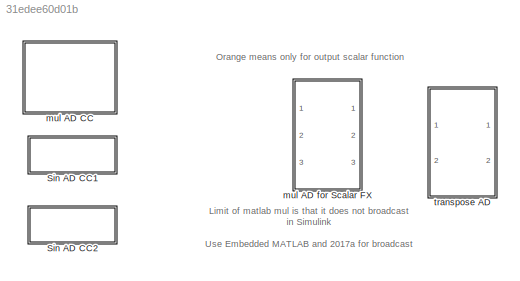
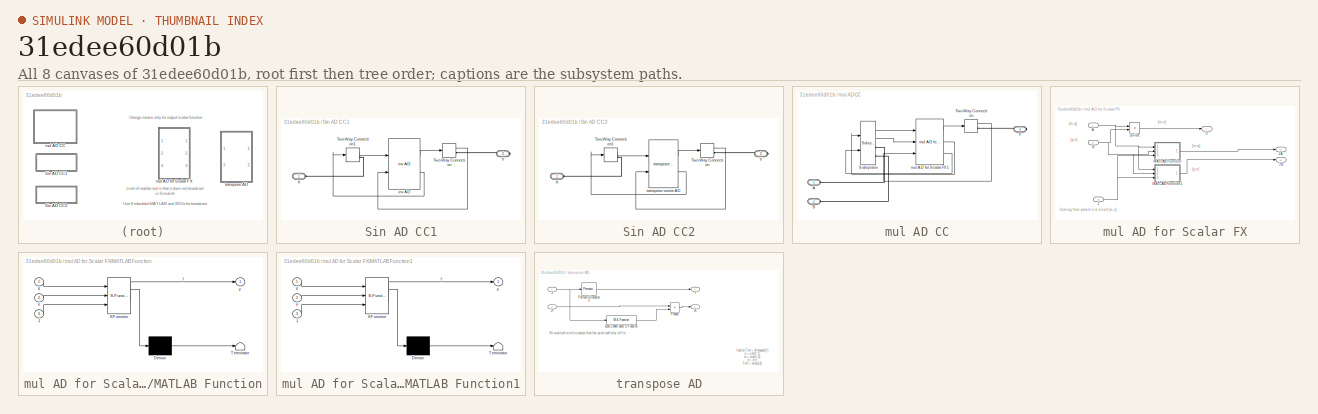
[diagram: thumbnail index - all 8 canvases of the model, root first then tree order]
MODEL slx_31edee60d01b
KIND library
CONFIG AbsTol = auto
CONFIG EnableMultiTasking = off
CONFIG FixedStep = auto
CONFIG MaxStep = auto
CONFIG MinStep = auto
CONFIG RelTol = 1e-3
CONFIG SampleTimeConstraint = Unconstrained
CONFIG Solver = VariableStepAuto
CONFIG SolverName = VariableStepAuto
CONFIG StartTime = 0.0
CONFIG StopTime = 10.0
BLOCK [SubSystem] Sin AD CC1
  Ports = [0, 0, 0, 0, 0, 1, 1]
  RequestExecContextInheritance = off
  Variant = off
BLOCK [TwoWayConnection] Sin AD CC1/Two-Way Connection
  Ports = [1, 1, 0, 0, 0, 0, 1]
BLOCK [TwoWayConnection] Sin AD CC1/Two-Way Connection1
  Ports = [1, 1, 0, 0, 0, 0, 1]
BLOCK [PMIOPort] Sin AD CC1/X
  Port = 1
  Side = Left
BLOCK [PMIOPort] Sin AD CC1/Y
  Port = 2
  Side = Right
BLOCK [Reference] Sin AD CC1/inv AD  REF=autodiff/inv AD  (lib defined in slx_73a817ef6e8b)
  Ports = [2, 2]
  SourceBlock = autodiff/inv AD
  SourceProductName = AutoDiff
  SourceType = SubSystem
BLOCK [SubSystem] Sin AD CC2
  Ports = [0, 0, 0, 0, 0, 1, 1]
  RequestExecContextInheritance = off
  Variant = off
BLOCK [TwoWayConnection] Sin AD CC2/Two-Way Connection
  Ports = [1, 1, 0, 0, 0, 0, 1]
BLOCK [TwoWayConnection] Sin AD CC2/Two-Way Connection1
  Ports = [1, 1, 0, 0, 0, 0, 1]
BLOCK [PMIOPort] Sin AD CC2/X
  Port = 1
  Side = Left
BLOCK [PMIOPort] Sin AD CC2/Y
  Port = 2
  Side = Right
BLOCK [Reference] Sin AD CC2/transpose vector AD  REF=autodiff/transpose vector AD  (lib defined in slx_73a817ef6e8b)
  Ports = [2, 2]
  SourceBlock = autodiff/transpose vector AD
  SourceProductName = AutoDiff
  SourceType = SubSystem
BLOCK [SubSystem] mul AD CC
  Ports = [0, 0, 0, 0, 0, 2, 1]
  RequestExecContextInheritance = off
  Variant = off
BLOCK [PMIOPort] mul AD CC/A
  Port = 1
  Side = Left
BLOCK [PMIOPort] mul AD CC/B
  Port = 2
  Side = Left
BLOCK [Reference] mul AD CC/Subsystem  REF=autodiff/Plus AD CC/Subsystem  (lib defined in slx_73a817ef6e8b)
  Ports = [2, 2, 0, 0, 0, 0, 2]
  SourceBlock = autodiff/Plus AD CC/Subsystem
  SourceProductName = AutoDiff
  SourceType = SubSystem
BLOCK [TwoWayConnection] mul AD CC/Two-Way Connection
  Ports = [1, 1, 0, 0, 0, 0, 1]
BLOCK [PMIOPort] mul AD CC/Y
  Port = 3
  Side = Right
BLOCK [Reference] mul AD CC/mul AD for Scalar FX1  REF=autodiff/mul AD for Scalar FX  (lib defined in slx_73a817ef6e8b)
  Ports = [3, 3]
  SourceBlock = autodiff/mul AD for Scalar FX
  SourceProductName = AutoDiff
  SourceType = SubSystem
BLOCK [SubSystem] mul AD for Scalar FX
  Ports = [3, 3]
  RequestExecContextInheritance = off
  Variant = off
BLOCK [Inport] mul AD for Scalar FX/A
  IconDisplay = Port number
BLOCK [Inport] mul AD for Scalar FX/B
  IconDisplay = Port number
  Port = 2
BLOCK [Product] mul AD for Scalar FX/Divide
  InputSameDT = off
  Inputs = **
  Multiplication = Matrix(*)
  OutDataTypeStr = Inherit: Inherit via internal rule
  Ports = [2, 1]
  RndMeth = Floor
  SaturateOnIntegerOverflow = off
BLOCK [Inport] mul AD for Scalar FX/J
  IconDisplay = Port number
  Port = 3
BLOCK [Outport] mul AD for Scalar FX/JA
  IconDisplay = Port number
  Port = 2
BLOCK [Outport] mul AD for Scalar FX/JB
  IconDisplay = Port number
  Port = 3
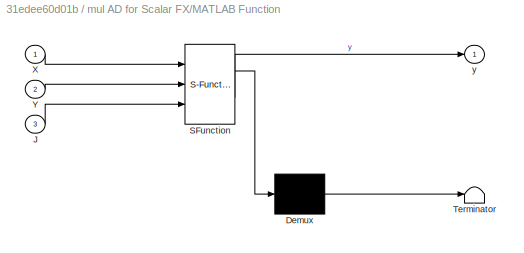
BLOCK [SubSystem] mul AD for Scalar FX/MATLAB Function
  ErrorFcn = Stateflow.Translate.translate
  PermitHierarchicalResolution = ExplicitOnly
  Ports = [3, 1]
  RequestExecContextInheritance = off
  SFBlockType = MATLAB Function
  TreatAsAtomicUnit = on
  Variant = off
BLOCK [Demux] mul AD for Scalar FX/MATLAB Function/ Demux 
  Outputs = 1
  Ports = [1, 1]
BLOCK [S-Function] mul AD for Scalar FX/MATLAB Function/ SFunction 
  EnableBusSupport = off
  FunctionName = sf_sfun
  PortCounts = [3 2]
  Ports = [3, 2]
  SFcnIsStateOwnerBlock = off
  SFunctionDeploymentMode = off
  Tag = Stateflow S-Function ad_mtx_scalar 2
BLOCK [Terminator] mul AD for Scalar FX/MATLAB Function/ Terminator 
BLOCK [Inport] mul AD for Scalar FX/MATLAB Function/J
  IconDisplay = Port number
  Port = 3
BLOCK [Inport] mul AD for Scalar FX/MATLAB Function/X
  IconDisplay = Port number
BLOCK [Inport] mul AD for Scalar FX/MATLAB Function/Y
  IconDisplay = Port number
  Port = 2
BLOCK [Outport] mul AD for Scalar FX/MATLAB Function/y
  IconDisplay = Port number
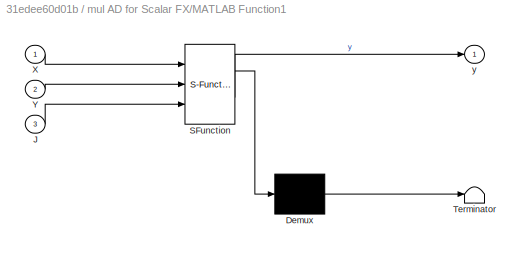
BLOCK [SubSystem] mul AD for Scalar FX/MATLAB Function1
  ErrorFcn = Stateflow.Translate.translate
  PermitHierarchicalResolution = ExplicitOnly
  Ports = [3, 1]
  RequestExecContextInheritance = off
  SFBlockType = MATLAB Function
  TreatAsAtomicUnit = on
  Variant = off
BLOCK [Demux] mul AD for Scalar FX/MATLAB Function1/ Demux 
  Outputs = 1
  Ports = [1, 1]
BLOCK [S-Function] mul AD for Scalar FX/MATLAB Function1/ SFunction 
  EnableBusSupport = off
  FunctionName = sf_sfun
  PortCounts = [3 2]
  Ports = [3, 2]
  SFcnIsStateOwnerBlock = off
  SFunctionDeploymentMode = off
  Tag = Stateflow S-Function ad_mtx_scalar 1
BLOCK [Terminator] mul AD for Scalar FX/MATLAB Function1/ Terminator 
BLOCK [Inport] mul AD for Scalar FX/MATLAB Function1/J
  IconDisplay = Port number
  Port = 3
BLOCK [Inport] mul AD for Scalar FX/MATLAB Function1/X
  IconDisplay = Port number
BLOCK [Inport] mul AD for Scalar FX/MATLAB Function1/Y
  IconDisplay = Port number
  Port = 2
BLOCK [Outport] mul AD for Scalar FX/MATLAB Function1/y
  IconDisplay = Port number
BLOCK [Outport] mul AD for Scalar FX/O
  IconDisplay = Port number
BLOCK [SubSystem] transpose AD
  Ports = [2, 2]
  RequestExecContextInheritance = off
  Variant = off
BLOCK [Outport] transpose AD/JX
  IconDisplay = Port number
  Port = 2
BLOCK [Inport] transpose AD/JY
  IconDisplay = Port number
  Port = 2
BLOCK [M-S-Function] transpose AD/Level-2 MATLAB S-Function
  FunctionName = dtranspose_sfun
  Ports = [1, 1]
BLOCK [PermuteDimensions] transpose AD/Permute Dimensions
BLOCK [Product] transpose AD/Product
  InputSameDT = off
  OutDataTypeStr = Inherit: Inherit via internal rule
  Ports = [2, 1]
  RndMeth = Floor
  SaturateOnIntegerOverflow = off
BLOCK [Inport] transpose AD/X
  IconDisplay = Port number
BLOCK [Outport] transpose AD/Y
  IconDisplay = Port number
ANNOTATION (root): Limit of matlab mul is that it does not broadcast in Simulink Use Embedded MATLAB and 2017a for broadcast
ANNOTATION (root): Orange means only for output scalar function
ANNOTATION mul AD for Scalar FX: Coming from parent it is sized [m,n]
ANNOTATION mul AD for Scalar FX: [m,n]
ANNOTATION mul AD for Scalar FX: [m,q]
ANNOTATION mul AD for Scalar FX: [q,n]
ANNOTATION transpose AD: function Tmn = dtranspose(V) n = size(V,1); m = size(V,2); d = m*n; Tmn = zeros(d,d); i = 1:d; rI = 1+m.*(i-1)-(m*n-1).*floor((i-1)./n); I1s = sub2ind([d d],rI,1:d); Tmn(I1s) = 1; Tmn = Tmn'; end
ANNOTATION transpose AD: We would suffice with a constant block that can be modified at InitFcn
LINE Sin AD CC1/Two-Way Connection1:1 -> Sin AD CC1/inv AD:1
LINE Sin AD CC1/Two-Way Connection:1 -> Sin AD CC1/inv AD:2
LINE Sin AD CC1/inv AD:1 -> Sin AD CC1/Two-Way Connection:1
LINE Sin AD CC1/inv AD:2 -> Sin AD CC1/Two-Way Connection1:1
LINE Sin AD CC2/Two-Way Connection1:1 -> Sin AD CC2/transpose vector AD:1
LINE Sin AD CC2/Two-Way Connection:1 -> Sin AD CC2/transpose vector AD:2
LINE Sin AD CC2/transpose vector AD:1 -> Sin AD CC2/Two-Way Connection:1
LINE Sin AD CC2/transpose vector AD:2 -> Sin AD CC2/Two-Way Connection1:1
LINE mul AD CC/Subsystem:1 -> mul AD CC/mul AD for Scalar FX1:1
LINE mul AD CC/Subsystem:2 -> mul AD CC/mul AD for Scalar FX1:2
LINE mul AD CC/Two-Way Connection:1 -> mul AD CC/mul AD for Scalar FX1:3
LINE mul AD CC/mul AD for Scalar FX1:1 -> mul AD CC/Two-Way Connection:1
LINE mul AD CC/mul AD for Scalar FX1:2 -> mul AD CC/Subsystem:1
LINE mul AD CC/mul AD for Scalar FX1:3 -> mul AD CC/Subsystem:2
NET mul AD for Scalar FX/A:1 -> mul AD for Scalar FX/Divide:1, mul AD for Scalar FX/MATLAB Function1:1, mul AD for Scalar FX/MATLAB Function:1
NET mul AD for Scalar FX/B:1 -> mul AD for Scalar FX/Divide:2, mul AD for Scalar FX/MATLAB Function1:2, mul AD for Scalar FX/MATLAB Function:2
LINE mul AD for Scalar FX/Divide:1 -> mul AD for Scalar FX/O:1
NET mul AD for Scalar FX/J:1 -> mul AD for Scalar FX/MATLAB Function1:3, mul AD for Scalar FX/MATLAB Function:3
LINE mul AD for Scalar FX/MATLAB Function1:1 -> mul AD for Scalar FX/JB:1
LINE mul AD for Scalar FX/MATLAB Function:1 -> mul AD for Scalar FX/JA:1
LINE transpose AD/JY:1 -> transpose AD/Product:1
LINE transpose AD/Level-2 MATLAB S-Function:1 -> transpose AD/Product:2
LINE transpose AD/Permute Dimensions:1 -> transpose AD/Y:1
LINE transpose AD/Product:1 -> transpose AD/JX:1
NET transpose AD/X:1 -> transpose AD/Level-2 MATLAB S-Function:1, transpose AD/Permute Dimensions:1
PLINE Sin AD CC1/Two-Way Connection1:RConn1 -- Sin AD CC1/X:RConn1
PLINE Sin AD CC1/Two-Way Connection:RConn1 -- Sin AD CC1/Y:RConn1
PLINE Sin AD CC2/Two-Way Connection1:RConn1 -- Sin AD CC2/X:RConn1
PLINE Sin AD CC2/Two-Way Connection:RConn1 -- Sin AD CC2/Y:RConn1
PLINE mul AD CC/A:RConn1 -- mul AD CC/Subsystem:RConn1
PLINE mul AD CC/B:RConn1 -- mul AD CC/Subsystem:RConn2
PLINE mul AD CC/Two-Way Connection:RConn1 -- mul AD CC/Y:RConn1
note: NET lines group one-source signal fan-out (src -> all destinations, sorted); 1:1 wires keep LINE
CHART mul AD for Scalar FX/MATLAB Function1 states=1 transitions=1
  STATE_LABEL 'eML_blk_kernel()'
  STATE_LABEL 'SCRIPT:\nfunction y = fcn(X,Y,J)\n%#codegen\n\ny = repmat(reshape(sum(X,1),size(X,2),1),1,size(Y,2));\nif length(J) == 1\n    y = J*y;\nelse\n    y = repmat(sum(J,1),size(Y,1),1).*y;\nend\n'
CHART mul AD for Scalar FX/MATLAB Function states=1 transitions=1
  STATE_LABEL 'eML_blk_kernel()'
  STATE_LABEL 'SCRIPT:\nfunction y = fcn(X,Y,J)\n%#codegen\n\ny = repmat(reshape(sum(Y,2),1,size(Y,1)),size(X,1),1);\nif length(J) == 1\n    y = J*y;\nelse\n    y = repmat(sum(J,2),1,size(X,2)).*y;\nend\n\n'
